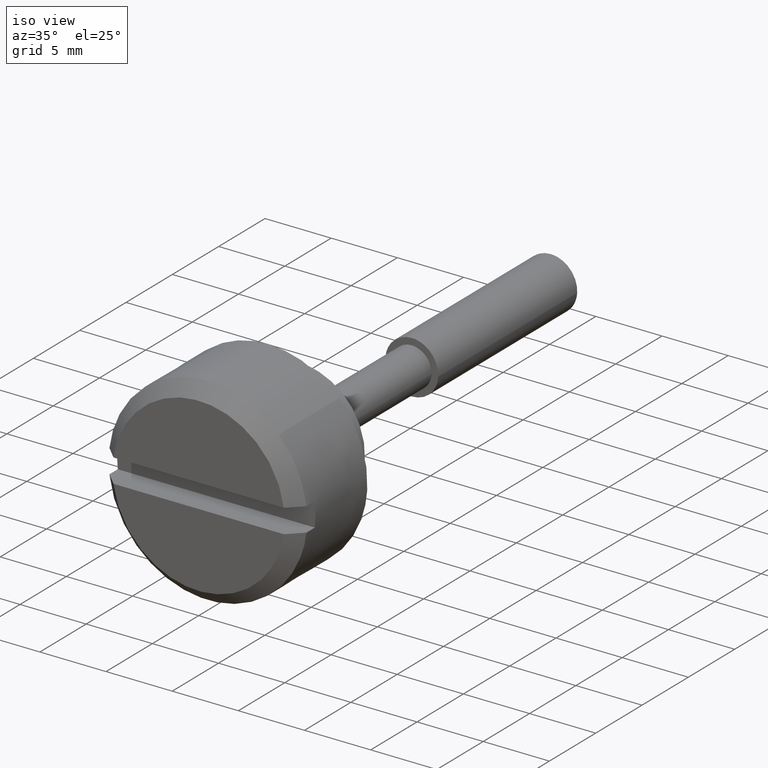
[diagram: clean part render]
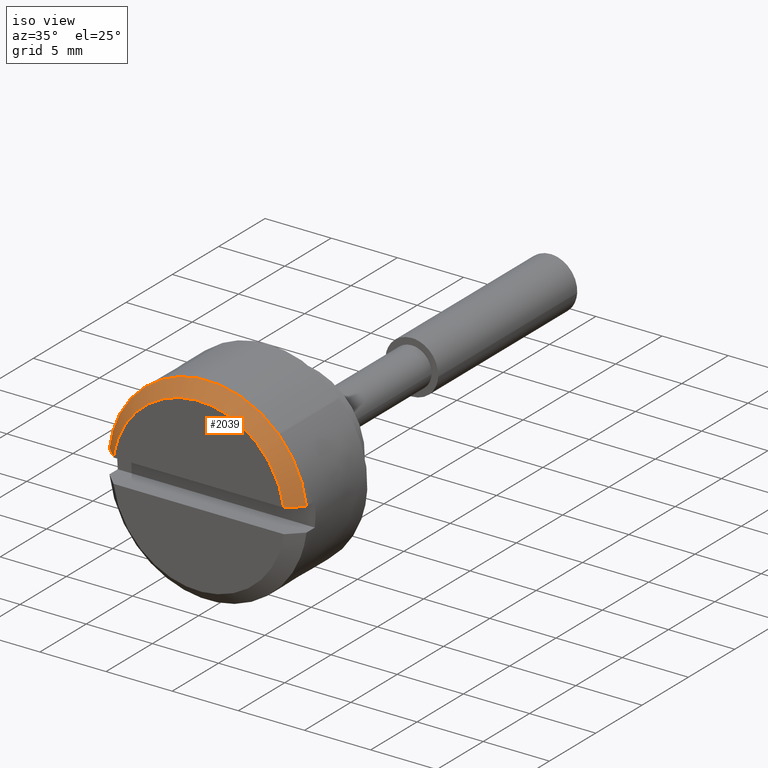
[diagram: same view with one face highlighted and labeled with its STEP entity id]
A machine part, iso view. The second image highlights one B-rep face of the part: STEP entity #2039.
In plain terms, the highlighted face is a freeform B-spline surface patch.
Its self-contained STEP definition (entity closure, byte-faithful):
#1637=CARTESIAN_POINT('',(1.000000000000014,3.440542728658084,6.664282837055192));
#1638=VERTEX_POINT('',#1637);
#1639=CARTESIAN_POINT('',(1.000000000000014,7.445804187594510,0.900000000000000));
#1640=VERTEX_POINT('',#1639);
#1641=CARTESIAN_POINT('',(1.000000000000014,3.440542728658084,6.664282837055192));
#1642=CARTESIAN_POINT('',(1.000000000000014,6.969257317165011,4.842527426032279));
#1643=CARTESIAN_POINT('',(1.000000000000014,7.445804187594514,0.900000000000002));
#1651=(BOUNDED_CURVE()B_SPLINE_CURVE(2,(#1641,#1642,#1643),.UNSPECIFIED.,.F.,.U.)B_SPLINE_CURVE_WITH_KNOTS((3,3),(0.667644921249080,1.0),.UNSPECIFIED.)CURVE()GEOMETRIC_REPRESENTATION_ITEM()RATIONAL_B_SPLINE_CURVE((0.887820988826118,0.832713376674246,1.0))REPRESENTATION_ITEM(''));
#1652=EDGE_CURVE('',#1638,#1640,#1651,.T.);
#1663=CARTESIAN_POINT('',(1.000000000000014,-5.359269523374849,5.246735192081132));
#1664=VERTEX_POINT('',#1663);
#1670=CARTESIAN_POINT('',(1.000000000000014,-7.445804187594510,0.900000000000000));
#1671=VERTEX_POINT('',#1670);
#1672=CARTESIAN_POINT('',(1.000000000000014,-7.445804187594514,0.899999999999998));
#1673=CARTESIAN_POINT('',(1.000000000000014,-7.140295468068608,3.427509003547368));
#1674=CARTESIAN_POINT('',(1.000000000000014,-5.359269523374850,5.246735192081132));
#1682=(BOUNDED_CURVE()B_SPLINE_CURVE(2,(#1672,#1673,#1674),.UNSPECIFIED.,.F.,.U.)B_SPLINE_CURVE_WITH_KNOTS((3,3),(0.0,0.226679079294635),.UNSPECIFIED.)CURVE()GEOMETRIC_REPRESENTATION_ITEM()RATIONAL_B_SPLINE_CURVE((1.0,0.885904021998685,0.875260728975606))REPRESENTATION_ITEM(''));
#1683=EDGE_CURVE('',#1671,#1664,#1682,.T.);
#1775=CARTESIAN_POINT('',(1.000000000000014,-5.359269523374850,5.246735192081132));
#1776=CARTESIAN_POINT('',(1.000000000000014,-3.153318933799040,7.500000000000001));
#1777=CARTESIAN_POINT('',(1.000000000000014,0.0,7.500000000000000));
#1778=CARTESIAN_POINT('',(1.000000000000014,1.821770347414325,7.499999999999999));
#1779=CARTESIAN_POINT('',(1.000000000000014,3.440542728658084,6.664282837055192));
#1787=(BOUNDED_CURVE()B_SPLINE_CURVE(2,(#1775,#1776,#1777,#1778,#1779),.UNSPECIFIED.,.F.,.U.)B_SPLINE_CURVE_WITH_KNOTS((3,2,3),(0.226679079294635,0.500000000000000,0.667644921249080),.UNSPECIFIED.)CURVE()GEOMETRIC_REPRESENTATION_ITEM()RATIONAL_B_SPLINE_CURVE((0.875260728975606,0.862427455356103,1.0,0.915618100680542,0.887820988826118))REPRESENTATION_ITEM(''));
#1788=EDGE_CURVE('',#1664,#1638,#1787,.T.);
#1859=CARTESIAN_POINT('',(0.0,-6.437390775772430,0.900000000000000));
#1860=VERTEX_POINT('',#1859);
#1861=CARTESIAN_POINT('',(-8.879982E-016,-6.437390775772431,0.900000000000000));
#1862=CARTESIAN_POINT('',(0.333113778059449,-6.773744375049863,0.900000000000000));
#1863=CARTESIAN_POINT('',(0.666477541841246,-7.109854117841357,0.900000000000000));
#1864=CARTESIAN_POINT('',(1.000000000000013,-7.445804187594512,0.900000000000000));
#1865=QUASI_UNIFORM_CURVE('',3,(#1861,#1862,#1863,#1864),.UNSPECIFIED.,.F.,.U.);
#1866=EDGE_CURVE('',#1860,#1671,#1865,.T.);
#1868=CARTESIAN_POINT('',(0.0,6.437390775772430,0.900000000000000));
#1869=VERTEX_POINT('',#1868);
#1875=CARTESIAN_POINT('',(1.000000000000012,7.445804187594511,0.900000000000000));
#1876=CARTESIAN_POINT('',(0.666477260186112,7.109853834136139,0.900000000000000));
#1877=CARTESIAN_POINT('',(0.333112202973973,6.773742784645311,0.900000000000000));
#1878=CARTESIAN_POINT('',(-1.319037E-015,6.437390775772431,0.900000000000000));
#1879=QUASI_UNIFORM_CURVE('',3,(#1875,#1876,#1877,#1878),.UNSPECIFIED.,.F.,.U.);
#1880=EDGE_CURVE('',#1640,#1869,#1879,.T.);
#1999=CARTESIAN_POINT('',(-0.025000000000000,-6.455403093650848,0.503384444021673));
#2000=CARTESIAN_POINT('',(1.025625000000014,-7.502848325352304,0.585062943095073));
#2001=CARTESIAN_POINT('',(-0.025000000000000,-5.985989505473619,6.523145215950819));
#2002=CARTESIAN_POINT('',(1.025625000000014,-6.957268304576047,7.581582195488785));
#2003=CARTESIAN_POINT('',(-0.025000000000000,0.051852068406047,6.474792379914737));
#2004=CARTESIAN_POINT('',(1.025625000000014,0.060265516957260,7.525383691752255));
#2005=CARTESIAN_POINT('',(-0.025000000000000,6.089693642285711,6.426439543878656));
#2006=CARTESIAN_POINT('',(1.025625000000014,7.077799338490566,7.469185188015723));
#2007=CARTESIAN_POINT('',(-0.025000000000000,6.462637128547536,0.399932925274701));
#2008=CARTESIAN_POINT('',(1.025625000000014,7.511256145254913,0.464825516721301));
#2016=(BOUNDED_SURFACE()B_SPLINE_SURFACE(1,2,((#1999,#2001,#2003,#2005,#2007),(#2000,#2002,#2004,#2006,#2008)),.UNSPECIFIED.,.F.,.F.,.U.)B_SPLINE_SURFACE_WITH_KNOTS((2,2),(3,2,3),(0.0,1.0),(0.0,11.857690092198791,23.715380184397588),.UNSPECIFIED.)GEOMETRIC_REPRESENTATION_ITEM()RATIONAL_B_SPLINE_SURFACE(((1.0,0.731353701619171,1.0,0.731353701619171,1.0),(1.0,0.731353701619171,1.0,0.731353701619171,1.0)))REPRESENTATION_ITEM('')SURFACE());
#2017=CARTESIAN_POINT('',(0.0,-6.437390775772433,0.899999999999998));
#2018=CARTESIAN_POINT('',(0.0,-5.654464870610922,6.500000000000000));
#2019=CARTESIAN_POINT('',(0.0,0.0,6.500000000000000));
#2020=CARTESIAN_POINT('',(0.0,5.654464870610919,6.500000000000000));
#2021=CARTESIAN_POINT('',(0.0,6.437390775772432,0.900000000000002));
#2029=(BOUNDED_CURVE()B_SPLINE_CURVE(2,(#2017,#2018,#2019,#2020,#2021),.UNSPECIFIED.,.F.,.U.)B_SPLINE_CURVE_WITH_KNOTS((3,2,3),(0.0,0.500000000000000,1.0),.UNSPECIFIED.)CURVE()GEOMETRIC_REPRESENTATION_ITEM()RATIONAL_B_SPLINE_CURVE((1.0,0.754473836014722,1.0,0.754473836014722,1.0))REPRESENTATION_ITEM(''));
#2030=EDGE_CURVE('',#1860,#1869,#2029,.T.);
#2031=ORIENTED_EDGE('',*,*,#2030,.F.);
#2032=ORIENTED_EDGE('',*,*,#1866,.T.);
#2033=ORIENTED_EDGE('',*,*,#1683,.T.);
#2034=ORIENTED_EDGE('',*,*,#1788,.T.);
#2035=ORIENTED_EDGE('',*,*,#1652,.T.);
#2036=ORIENTED_EDGE('',*,*,#1880,.T.);
#2037=EDGE_LOOP('',(#2031,#2032,#2033,#2034,#2035,#2036));
#2038=FACE_OUTER_BOUND('',#2037,.T.);
#2039=ADVANCED_FACE('',(#2038),#2016,.T.);